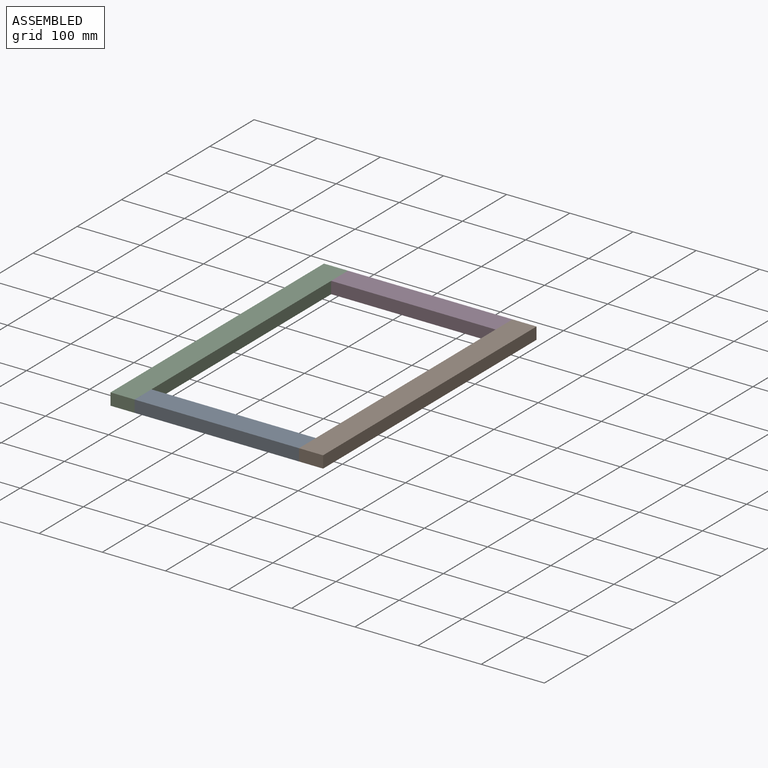
[diagram: assembled view]
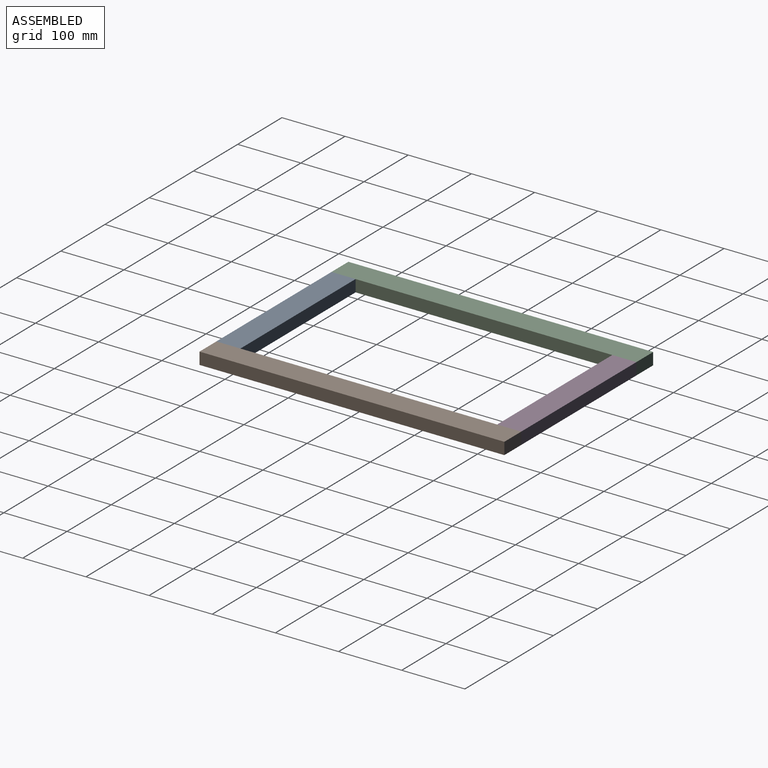
[diagram: assembled view, second angle]
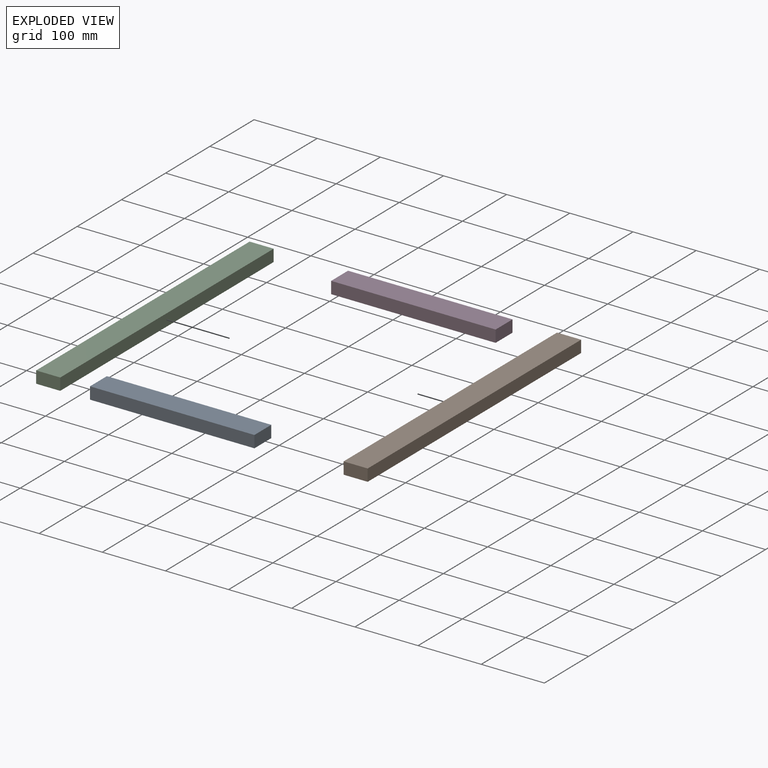
[diagram: exploded view]
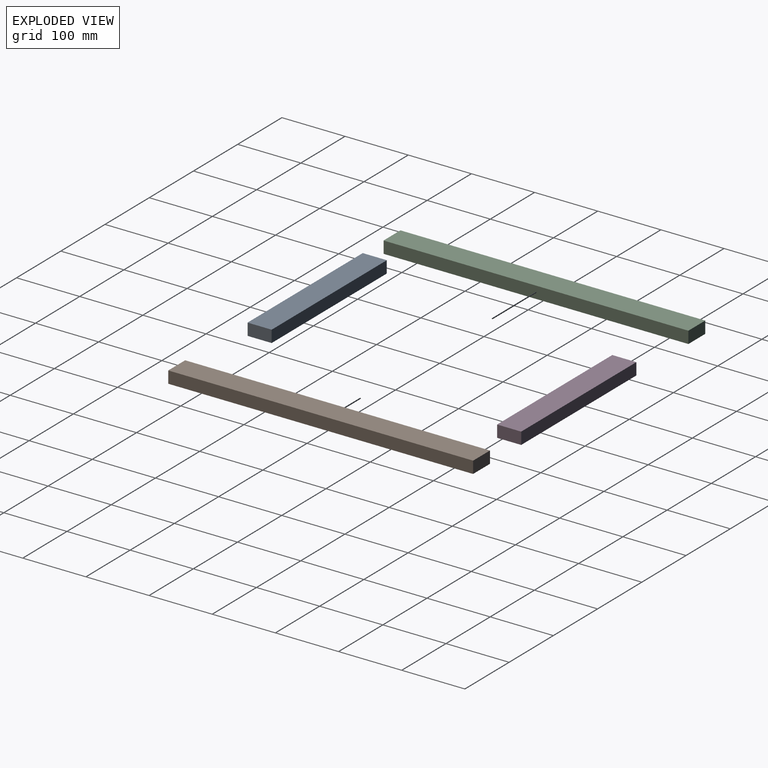
[diagram: exploded view, second angle]
ASSEMBLY  parts=4 mates=3
PART A: 6 faces, bbox 260.4x38.1x19.1 mm
  f0: plane 260.35x19.05mm, normal (0,1,0), area 4959.7mm2, adj f1,f3,f4,f5
  f1: plane 38.1x19.05mm, normal (-1,0,0), area 725.8mm2, adj f0,f2,f4,f5
  f2: plane 260.35x19.05mm, normal (0,-1,0), area 4959.7mm2, adj f1,f3,f4,f5
  f3: plane 38.1x19.05mm, normal (1,0,0), area 725.8mm2, adj f0,f2,f4,f5
  f4: plane 260.35x38.1mm, normal (0,0,1), area 9919.3mm2, adj f0,f1,f2,f3
  f5: plane 260.35x38.1mm, normal (0,0,-1), area 9919.3mm2, adj f0,f1,f2,f3
PART B: 6 faces, bbox 38.1x482.6x19.1 mm
  f0: plane 38.1x19.05mm, normal (0,1,0), area 725.8mm2, adj f1,f3,f4,f5
  f1: plane 482.6x19.05mm, normal (-1,0,0), area 9193.5mm2, adj f0,f2,f4,f5
  f2: plane 38.1x19.05mm, normal (0,-1,0), area 725.8mm2, adj f1,f3,f4,f5
  f3: plane 482.6x19.05mm, normal (1,0,0), area 9193.5mm2, adj f0,f2,f4,f5
  f4: plane 482.6x38.1mm, normal (0,0,1), area 18387.1mm2, adj f0,f1,f2,f3
  f5: plane 482.6x38.1mm, normal (0,0,-1), area 18387.1mm2, adj f0,f1,f2,f3
PART C: same geometry as B
PART D: same geometry as A
PLACE A t=(130.18,-222.25,9.52)mm
PLACE B t=(279.4,0,9.52)mm
PLACE C t=(-19.05,0,9.52)mm
PLACE D t=(130.18,222.25,9.52)mm
MATE fastened D.f1 <-> C.f3  axis (1,0,0) through (0,241.3,19.05)mm
MATE fastened A.f1 <-> C.f3  axis (1,0,0) through (0,-241.3,0)mm
MATE fastened B.f1 <-> A.f3  axis (1,0,0) through (260.35,-241.3,19.05)mm
